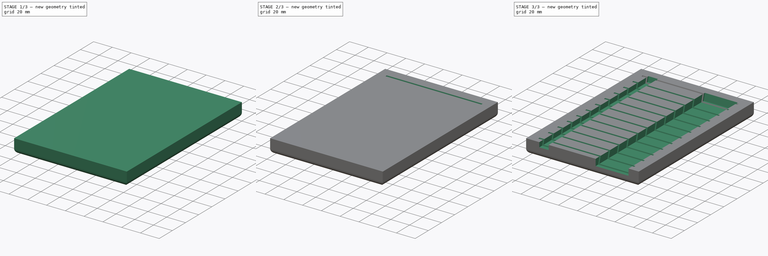
[diagram: build sequence overview — one tinted view per stage of 3, left to right]
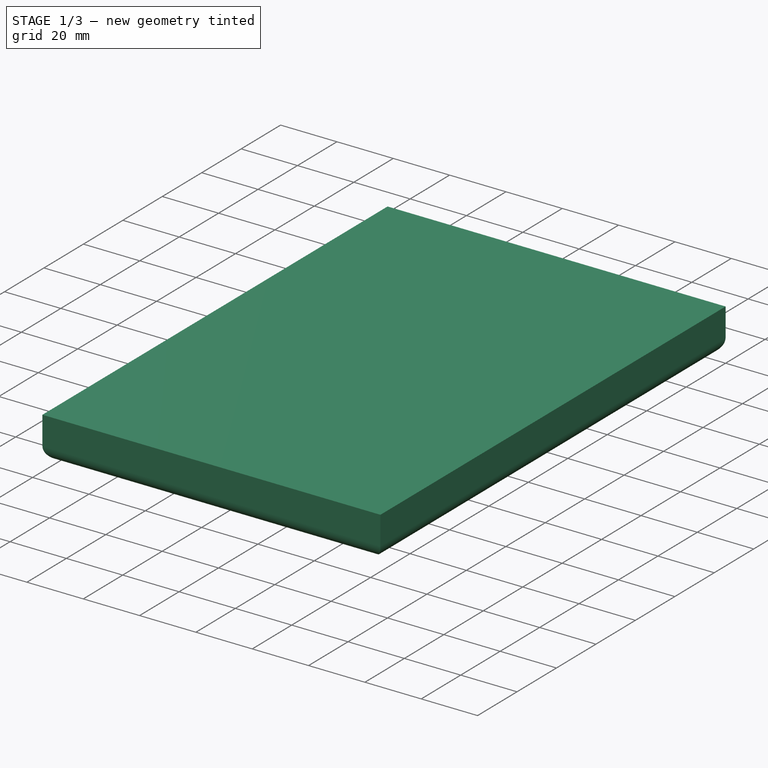
[diagram: stage 1 of 3 — iso view after this stage's code; geometry added in this stage tinted green]
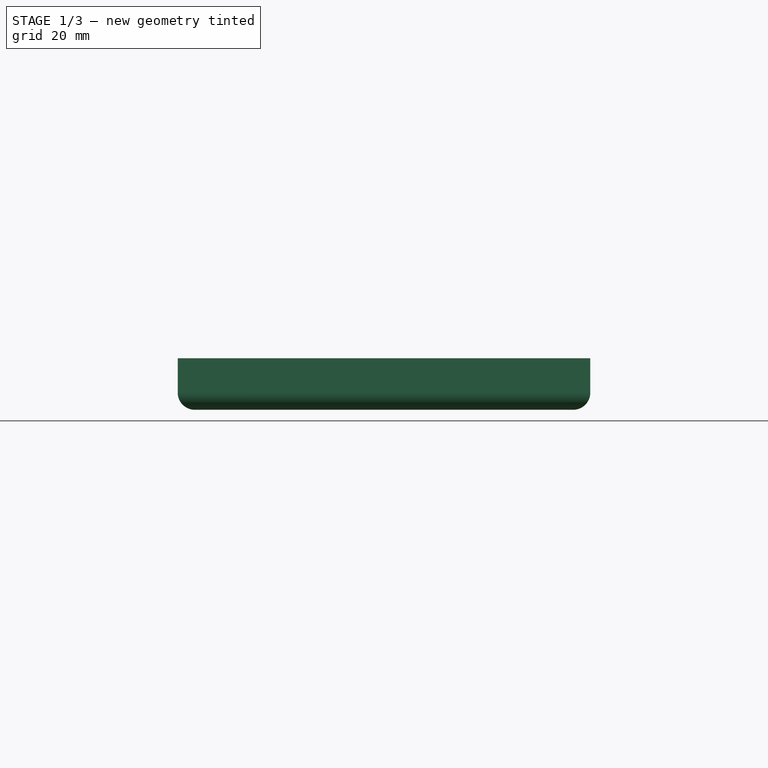
[diagram: stage 1 of 3 — front view after this stage's code; geometry added in this stage tinted green]
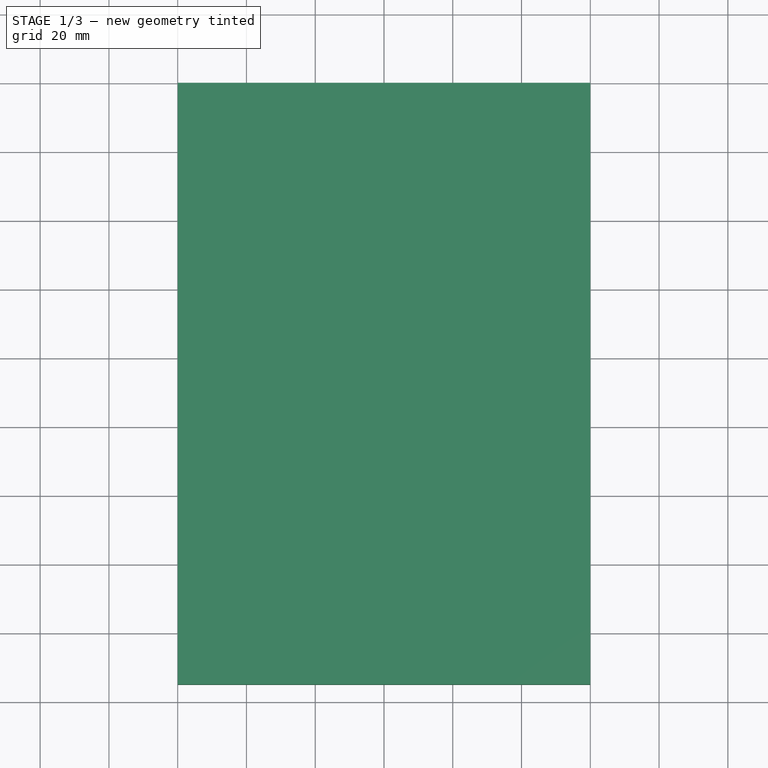
[diagram: stage 1 of 3 — top view after this stage's code; geometry added in this stage tinted green]
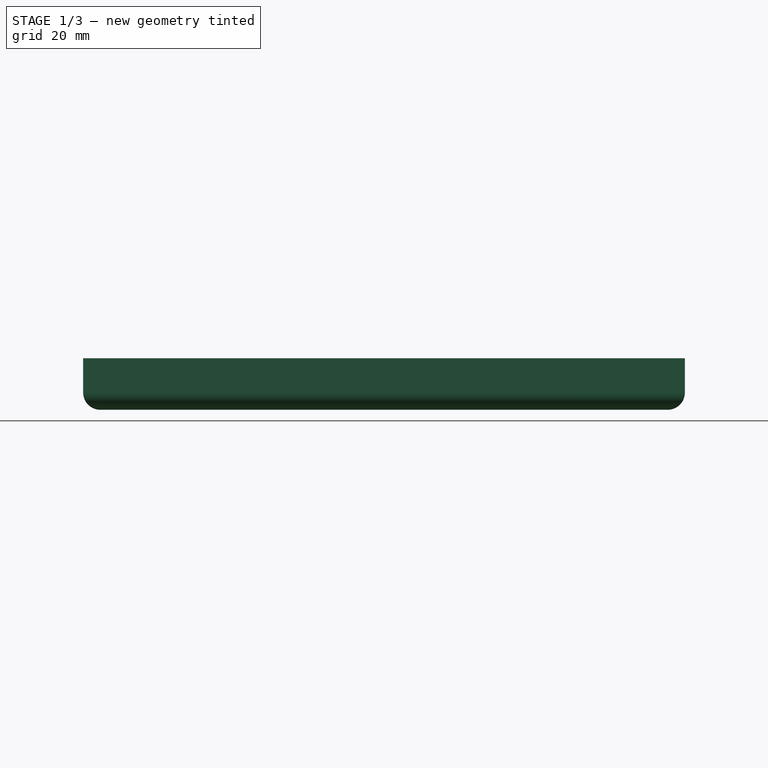
[diagram: stage 1 of 3 — right view after this stage's code; geometry added in this stage tinted green]
FCSTD DOCUMENT  (FreeCAD 0.21R33771 (Git))
Label: Holder
License: Creative Commons Attribution-NonCommercial-ShareAlike 4.0
LicenseURL: https://creativecommons.org/licenses/by-nc-sa/4.0/
objects: Sketcher::SketchObject×3, PartDesign::Pocket×2, PartDesign::Pad×1, PartDesign::Fillet×1, PartDesign::LinearPattern×1, PartDesign::Body×1
note: 13 computed .brp shape members not serialized (recipe doc carries the construction recipe); baked Part::Feature solids carry a one-line shape summary decoded from their .brp

FEATURE [Sketcher::SketchObject] Sketch
  FullyConstrained = true
  MapMode = 5
  Support = -> [XY_Plane]
  sketch-geometry (4):
    g0: LineSegment StartX=-60 StartY=0 StartZ=0 EndX=60 EndY=0 EndZ=0
    g1: LineSegment StartX=60 StartY=0 StartZ=0 EndX=60 EndY=-175 EndZ=0
    g2: LineSegment StartX=60 StartY=-175 StartZ=0 EndX=-60 EndY=-175 EndZ=0
    g3: LineSegment StartX=-60 StartY=-175 StartZ=0 EndX=-60 EndY=0 EndZ=0
  constraints (11):
    c: Coincident(g0,g1)
    c: Coincident(g1,g2)
    c: Coincident(g2,g3)
    c: Coincident(g3,g0)
    c: Horizontal(g0)
    c: Vertical(g1)
    c: Vertical(g3)
    c: PointOnObject(g0,g-1)
    c: Distance(g1) = 175
    c: Distance(g0) = 120
    c: Symmetric(g1,g2,g-2)
FEATURE [PartDesign::Pad] Pad
  Direction = (0,0,1)
  Length = 15
  Length2 = 10
  Profile = -> Sketch
  ReferenceAxis = -> Sketch [N_Axis]
  Type = 0
FEATURE [PartDesign::Fillet] Fillet
  Base = -> Pad [Edge11,Edge3,Edge6,Edge9]
  BaseFeature = -> Pad
  Radius = 5
  SupportTransform = false
  UseAllEdges = false
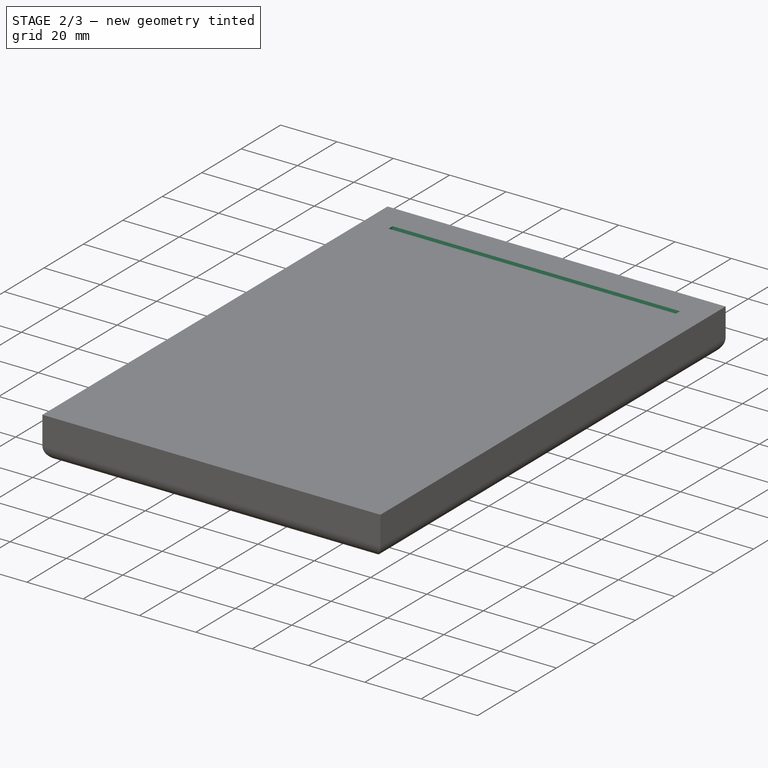
[diagram: stage 2 of 3 — iso view after this stage's code; geometry added in this stage tinted green]
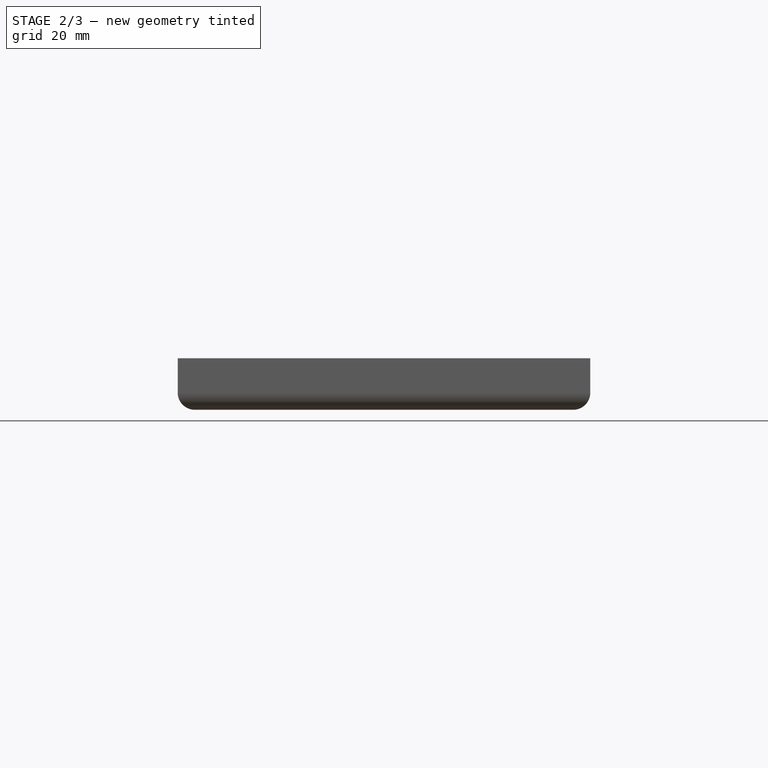
[diagram: stage 2 of 3 — front view after this stage's code; geometry added in this stage tinted green]
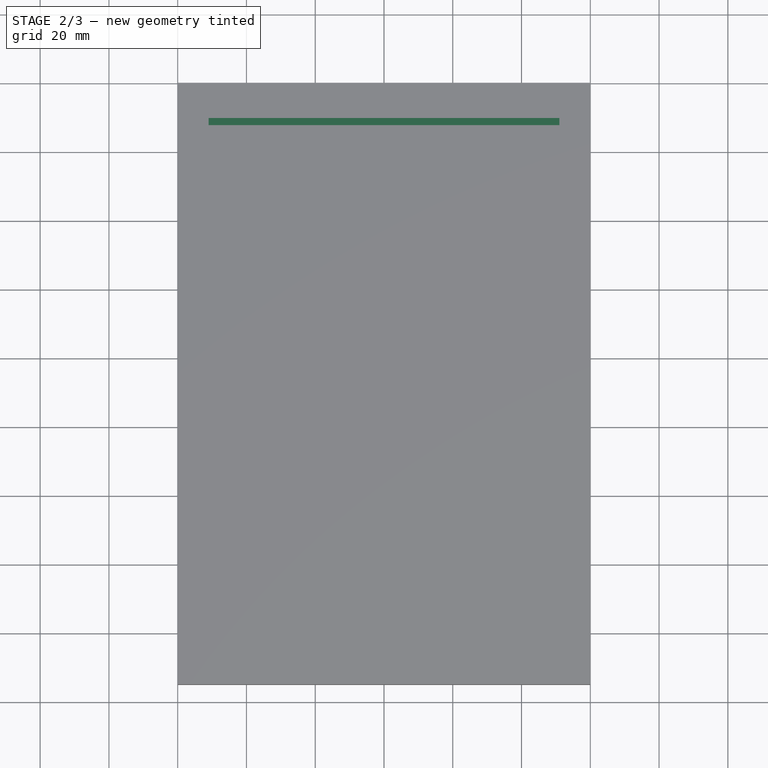
[diagram: stage 2 of 3 — top view after this stage's code; geometry added in this stage tinted green]
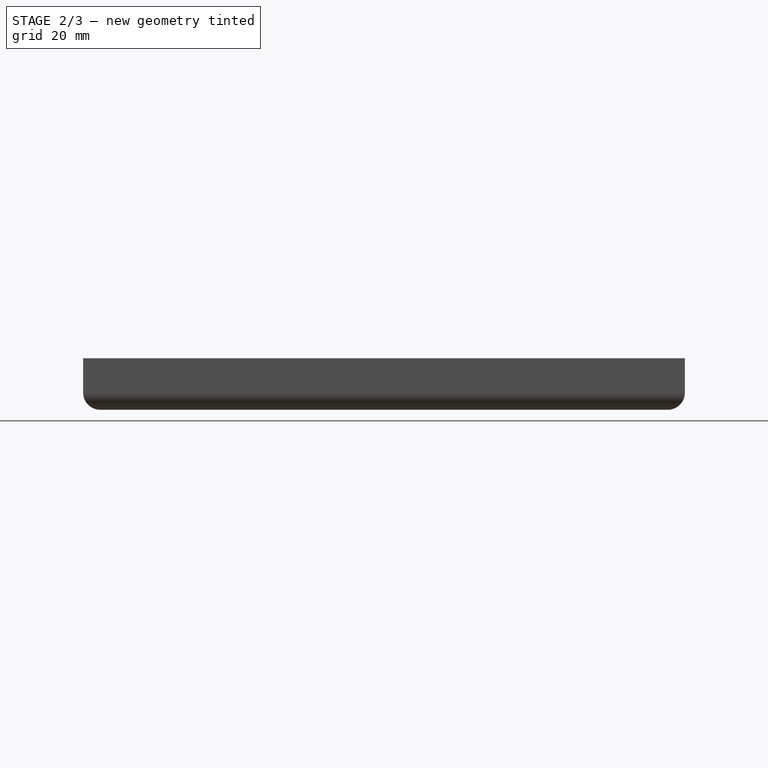
[diagram: stage 2 of 3 — right view after this stage's code; geometry added in this stage tinted green]
FEATURE [Sketcher::SketchObject] Sketch001
  ExternalGeometry = -> [Fillet]
  FullyConstrained = true
  MapMode = 5
  Placement = pos=(0,0,0) rot=(0.57735,0.57735,0.57735;2.0944rad)
  Support = -> [YZ_Plane]
  sketch-geometry (4):
    g0: LineSegment StartX=-1.93185 StartY=53.8139 StartZ=0 EndX=0 EndY=53.2963 EndZ=0
    g1: LineSegment StartX=0 StartY=53.2963 StartZ=0 EndX=-12.941 EndY=5 EndZ=0
    g2: LineSegment StartX=-12.941 StartY=5 StartZ=0 EndX=-14.8728 EndY=5.51764 EndZ=0
    g3: LineSegment StartX=-14.8728 StartY=5.51764 StartZ=0 EndX=-1.93185 EndY=53.8139 EndZ=0
  constraints (12):
    c: Coincident(g0,g1)
    c: Coincident(g1,g2)
    c: Coincident(g2,g3)
    c: Coincident(g3,g0)
    c: Perpendicular(g2,g3)
    c: Parallel(g0,g2)
    c: Parallel(g1,g3)
    c: Angle(g1,g-2) = 0.261799
    c: Distance(g2) = 2
    c: Distance(g1) = 50
    c: PointOnObject(g1,g-3)
    c: PointOnObject(g0,g-2)
FEATURE [PartDesign::Pocket] Pocket
  BaseFeature = -> Fillet
  Direction = (-1,2e-16,-3e-16)
  Length = 102
  Length2 = 5
  Midplane = true
  Profile = -> Sketch001
  ReferenceAxis = -> Sketch001 [N_Axis]
  Type = 0
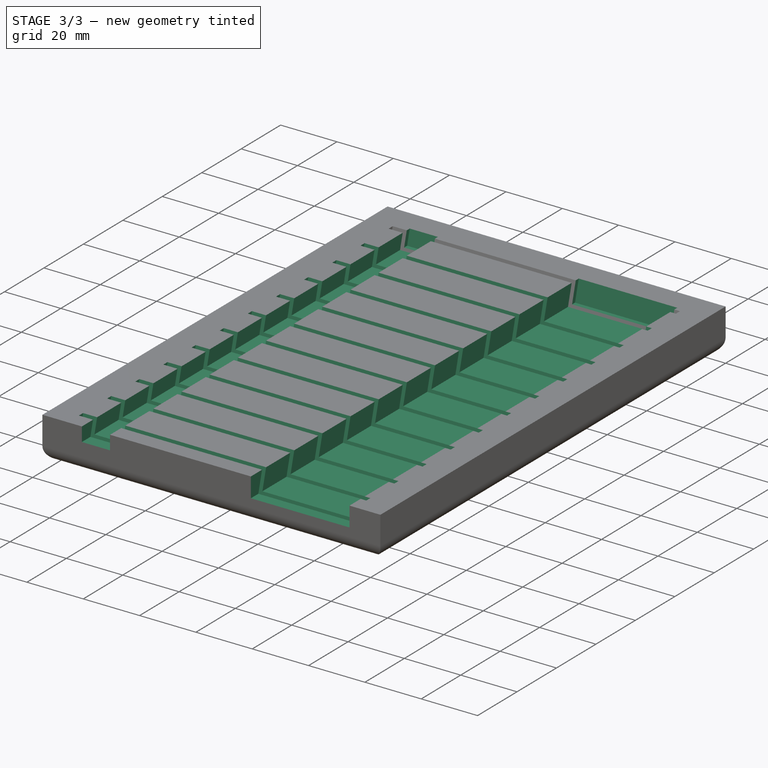
[diagram: stage 3 of 3 — iso view after this stage's code; geometry added in this stage tinted green]
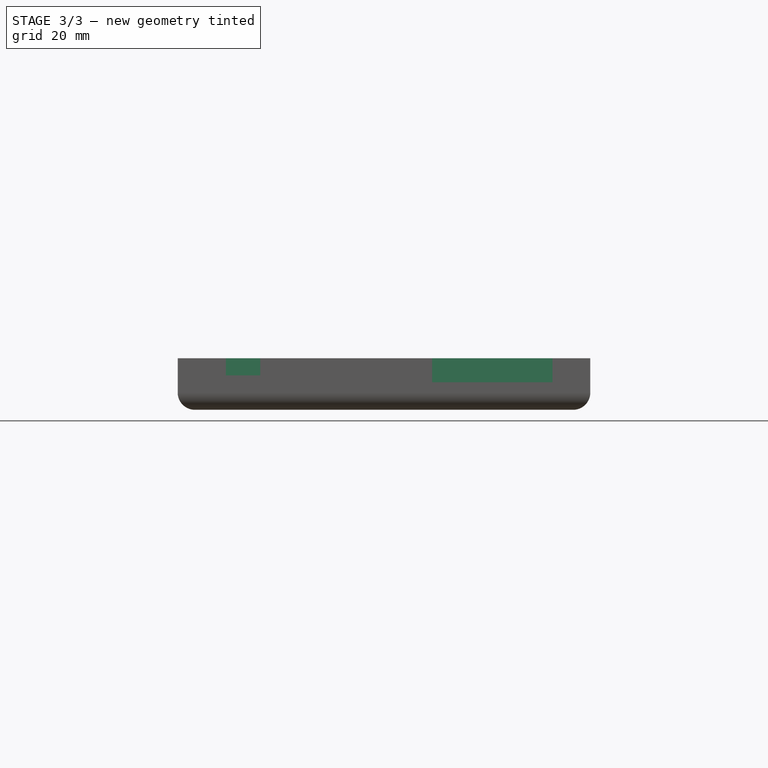
[diagram: stage 3 of 3 — front view after this stage's code; geometry added in this stage tinted green]
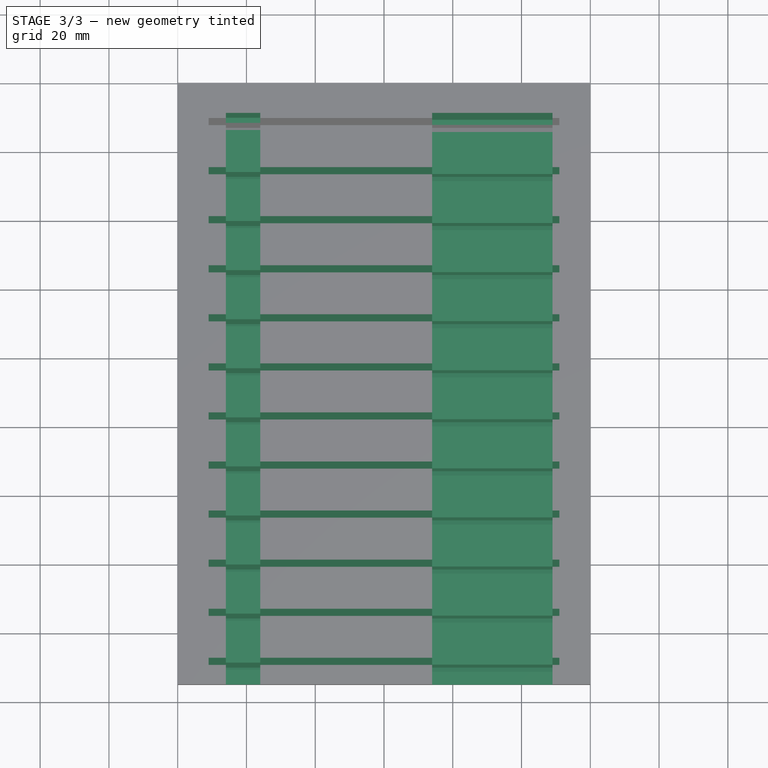
[diagram: stage 3 of 3 — top view after this stage's code; geometry added in this stage tinted green]
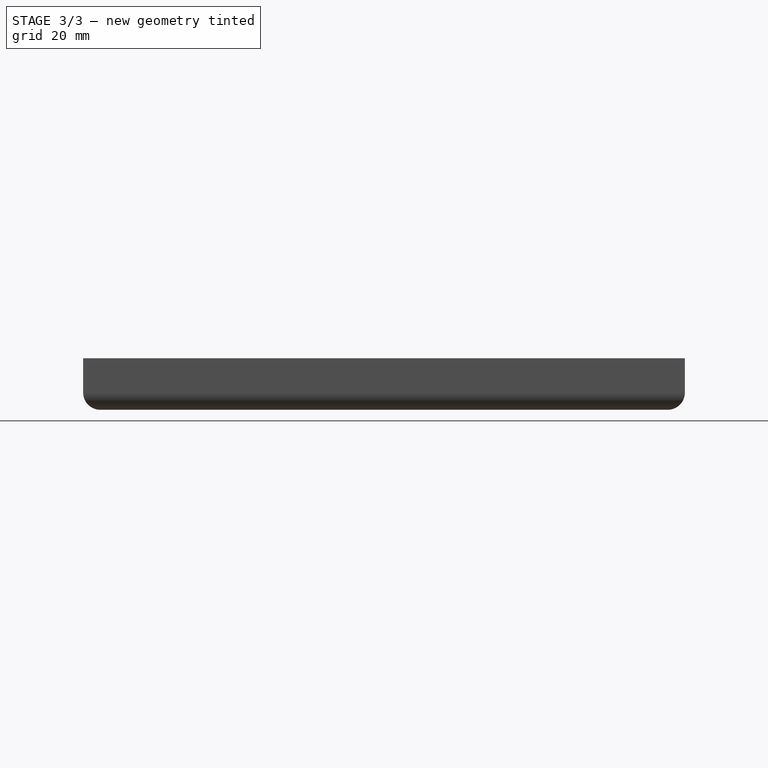
[diagram: stage 3 of 3 — right view after this stage's code; geometry added in this stage tinted green]
FEATURE [PartDesign::LinearPattern] LinearPattern
  BaseFeature = -> Pocket
  Direction = -> Y_Axis
  Length = 157
  Occurrences = 12
  Originals = -> [Pocket]
  Reversed = true
FEATURE [Sketcher::SketchObject] Sketch002
  ExternalGeometry = -> [LinearPattern]
  FullyConstrained = true
  MapMode = 5
  Placement = pos=(0,-175,0) rot=(1,0,0;1.5708rad)
  Support = -> [LinearPattern]
  sketch-geometry (8):
    g0: LineSegment StartX=14 StartY=15 StartZ=0 EndX=49 EndY=15 EndZ=0
    g1: LineSegment StartX=49 StartY=15 StartZ=0 EndX=49 EndY=8 EndZ=0
    g2: LineSegment StartX=49 StartY=8 StartZ=0 EndX=14 EndY=8 EndZ=0
    g3: LineSegment StartX=14 StartY=8 StartZ=0 EndX=14 EndY=15 EndZ=0
    g4: LineSegment StartX=-46 StartY=15 StartZ=0 EndX=-36 EndY=15 EndZ=0
    g5: LineSegment StartX=-36 StartY=15 StartZ=0 EndX=-36 EndY=10 EndZ=0
    g6: LineSegment StartX=-36 StartY=10 StartZ=0 EndX=-46 EndY=10 EndZ=0
    g7: LineSegment StartX=-46 StartY=10 StartZ=0 EndX=-46 EndY=15 EndZ=0
  constraints (24):
    c: Coincident(g0,g1)
    c: Coincident(g1,g2)
    c: Coincident(g2,g3)
    c: Coincident(g3,g0)
    c: Horizontal(g0)
    c: Horizontal(g2)
    c: Vertical(g1)
    c: Vertical(g3)
    c: PointOnObject(g0,g-5)
    c: Distance(g2,g-6) = 3
    c: Distance(g1,g-3) = 2
    c: Distance(g2) = 35
    c: Coincident(g4,g5)
    c: Coincident(g5,g6)
    c: Coincident(g6,g7)
    c: Coincident(g7,g4)
    c: Horizontal(g4)
    c: Horizontal(g6)
    c: Vertical(g5)
    c: Vertical(g7)
    c: PointOnObject(g4,g-5)
    c: Distance(g6,g-6) = 5
    c: Distance(g6,g-4) = 5
    c: Distance(g6) = 10
FEATURE [PartDesign::Pocket] Pocket001
  BaseFeature = -> LinearPattern
  Direction = (0,1,-2e-16)
  Length = 0
  Length2 = 5
  Offset = 1.5
  Profile = -> Sketch002
  ReferenceAxis = -> Sketch002 [N_Axis]
  Type = 3
  UpToFace = -> LinearPattern [Face56]
FEATURE [PartDesign::Body] Body  label="Körper"
  Group = -> [Sketch,Pad,Fillet,Sketch001,Pocket,LinearPattern,Sketch002,Pocket001]
  Origin = -> Origin
  Tip = -> Pocket001
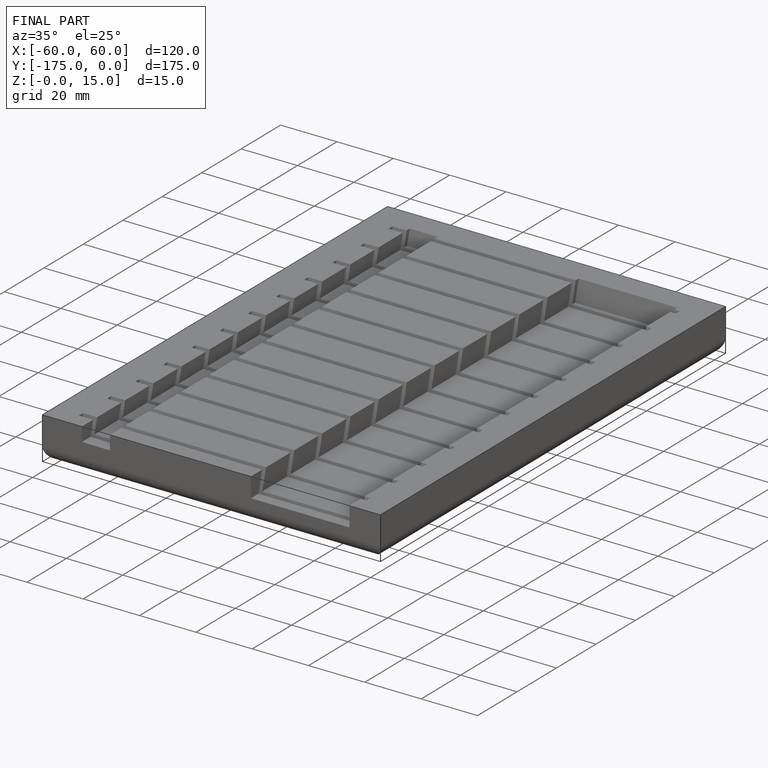
[diagram: finished part — iso view with bounding-box wireframe]
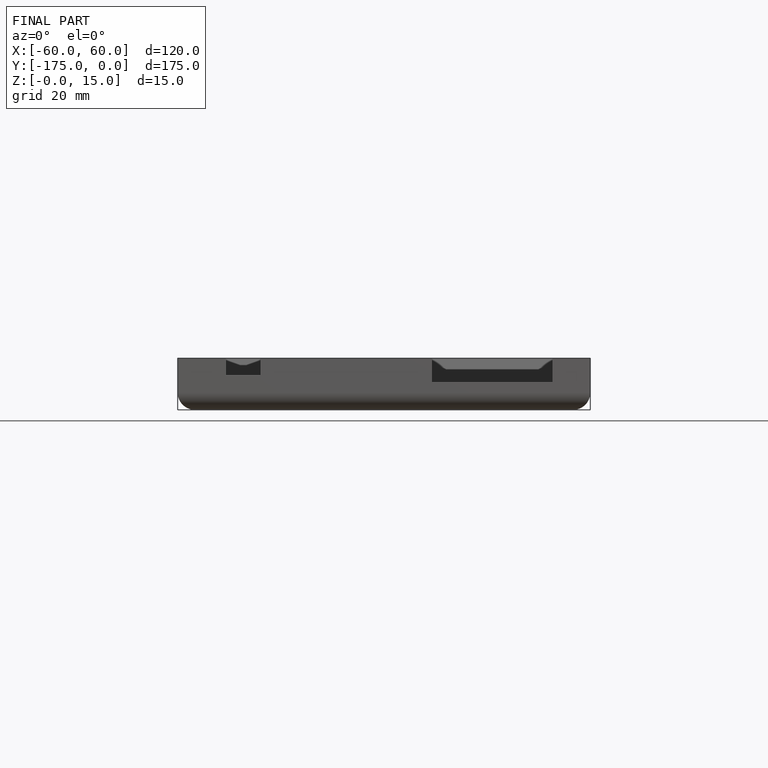
[diagram: finished part — front view with bounding-box wireframe]
